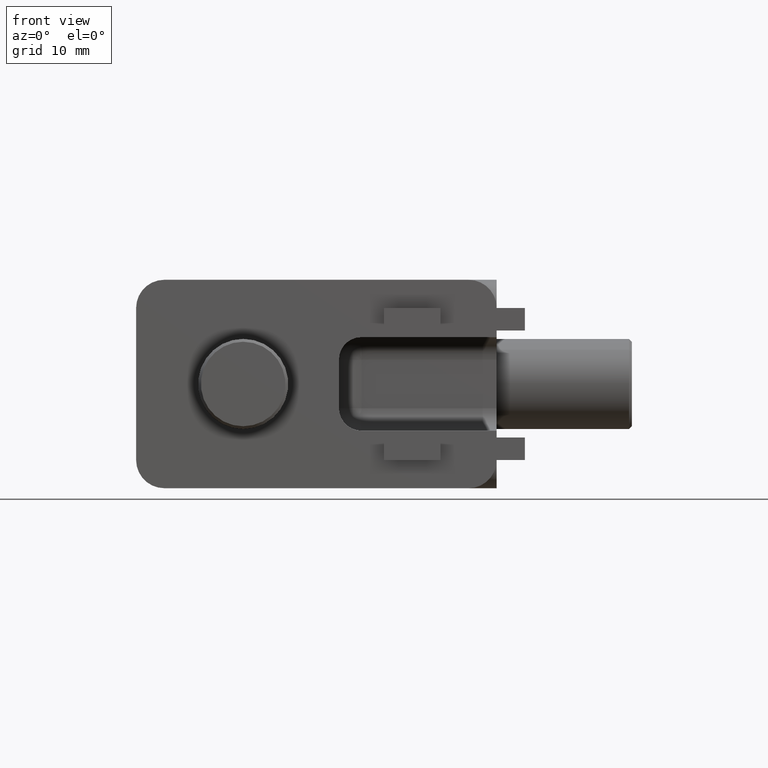
[diagram: clean part render]
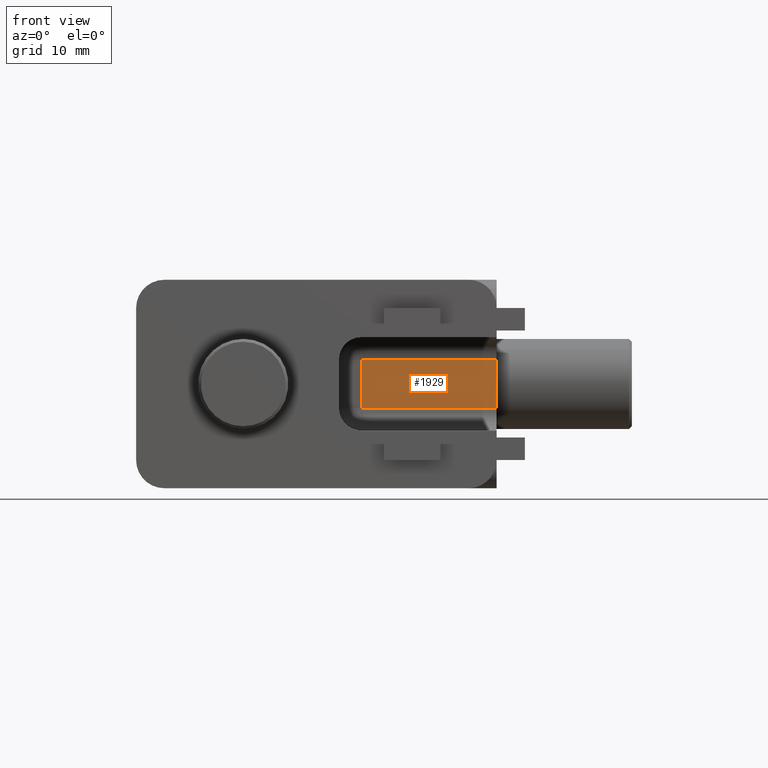
[diagram: same view with one face highlighted and labeled with its STEP entity id]
A machine part, front view. The second image highlights one B-rep face of the part: STEP entity #1929.
In plain terms, the highlighted planar face has unit normal (0, -1, 0).
Its self-contained STEP definition (entity closure, byte-faithful):
#62=PLANE('',#2114);
#156=FACE_OUTER_BOUND('',#277,.T.);
#277=EDGE_LOOP('',(#1465,#1466,#1467,#1468));
#399=LINE('',#3038,#573);
#445=LINE('',#3167,#619);
#446=LINE('',#3169,#620);
#447=LINE('',#3170,#621);
#573=VECTOR('',#2350,1000.);
#619=VECTOR('',#2470,1000.);
#620=VECTOR('',#2471,1000.);
#621=VECTOR('',#2472,1000.);
#869=VERTEX_POINT('',#3035);
#870=VERTEX_POINT('',#3037);
#916=VERTEX_POINT('',#3166);
#917=VERTEX_POINT('',#3168);
#1069=EDGE_CURVE('',#870,#869,#399,.T.);
#1135=EDGE_CURVE('',#869,#916,#445,.T.);
#1136=EDGE_CURVE('',#916,#917,#446,.T.);
#1137=EDGE_CURVE('',#917,#870,#447,.T.);
#1465=ORIENTED_EDGE('',*,*,#1069,.T.);
#1466=ORIENTED_EDGE('',*,*,#1135,.T.);
#1467=ORIENTED_EDGE('',*,*,#1136,.T.);
#1468=ORIENTED_EDGE('',*,*,#1137,.T.);
#1929=ADVANCED_FACE('',(#156),#62,.T.);
#2114=AXIS2_PLACEMENT_3D('',#3165,#2468,#2469);
#2350=DIRECTION('',(0.,0.,1.));
#2468=DIRECTION('center_axis',(0.,-1.,0.));
#2469=DIRECTION('ref_axis',(0.,0.,-1.));
#2470=DIRECTION('',(-1.,0.,-1.23908819712629E-16));
#2471=DIRECTION('',(0.,0.,-1.));
#2472=DIRECTION('',(1.,0.,-1.23908819712629E-16));
#3035=CARTESIAN_POINT('',(16.7248569721971,0.0522856449550502,2.15));
#3037=CARTESIAN_POINT('',(16.7248569721971,0.0522856449550502,-2.15));
#3038=CARTESIAN_POINT('',(16.7248569721971,0.0522856449550502,-4.15));
#3165=CARTESIAN_POINT('Origin',(16.7248569721971,0.0522856449550502,4.15));
#3166=CARTESIAN_POINT('',(4.72485697219707,0.0522856449550502,2.15));
#3167=CARTESIAN_POINT('',(16.7248569721971,0.0522856449550502,2.15));
#3168=CARTESIAN_POINT('',(4.72485697219707,0.0522856449550502,-2.15));
#3169=CARTESIAN_POINT('',(4.72485697219707,0.0522856449550502,4.15));
#3170=CARTESIAN_POINT('',(16.7248569721971,0.0522856449550502,-2.15));